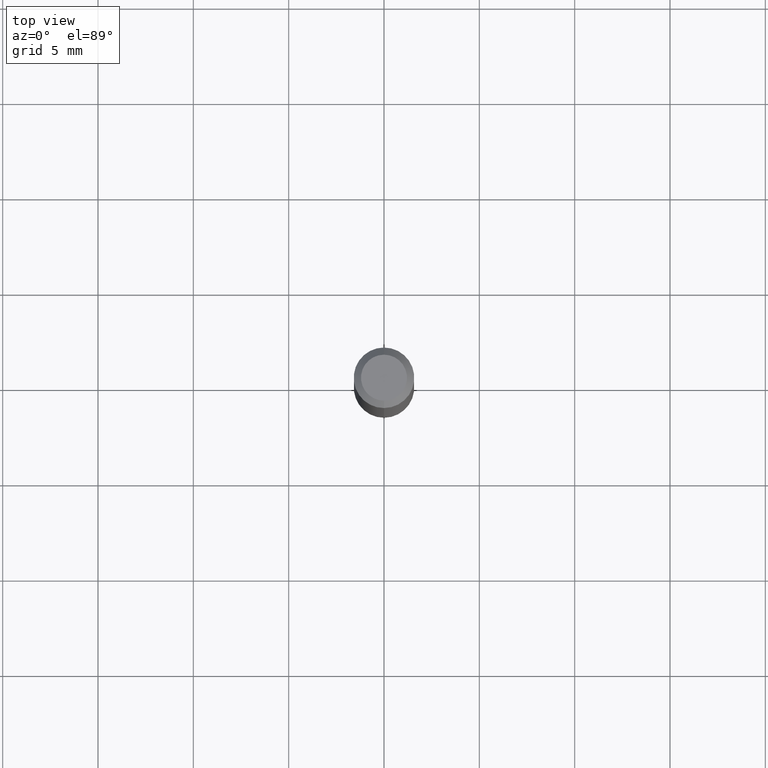
[diagram: clean part render]
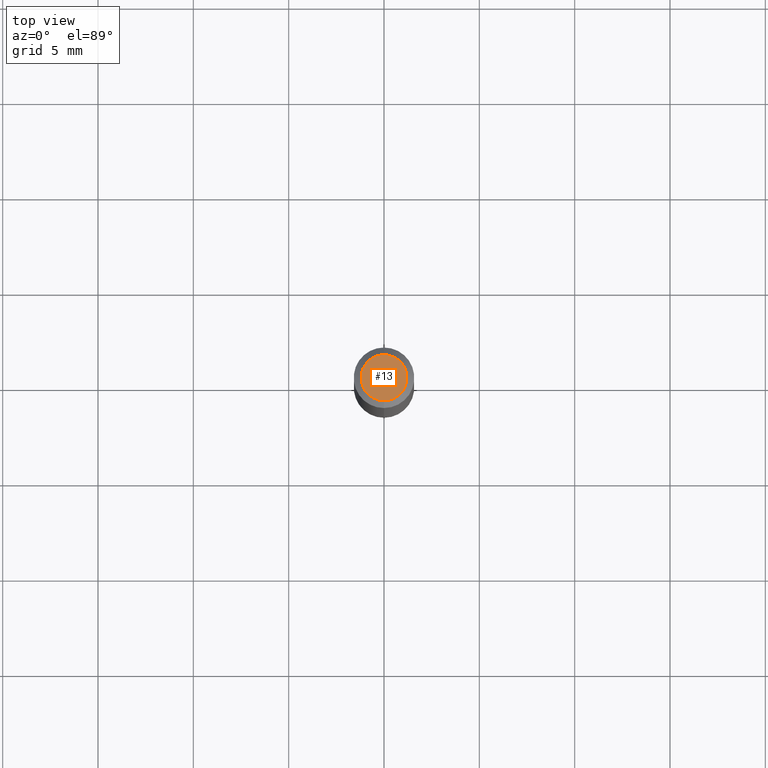
[diagram: same view with one face highlighted and labeled with its STEP entity id]
A machine part, top view. The second image highlights one B-rep face of the part: STEP entity #13.
In plain terms, the highlighted planar face has unit normal (0, -0, -1).
Its self-contained STEP definition (entity closure, byte-faithful):
#4 = VERTEX_POINT ( 'NONE', #192 ) ;
#13 = ADVANCED_FACE ( 'NONE', ( #287 ), #361, .F. ) ;
#18 = ORIENTED_EDGE ( 'NONE', *, *, #66, .T. ) ;
#23 = DIRECTION ( 'NONE',  ( -6.982962677686266711E-15, -1.000000000000000000, 3.494325949358259744E-15 ) ) ;
#66 = EDGE_CURVE ( 'NONE', #337, #4, #491, .T. ) ;
#69 = CIRCLE ( 'NONE', #446, 0.04749999999999999362 ) ;
#82 = DIRECTION ( 'NONE',  ( 2.443482425279177006E-29, -3.494325949358259350E-15, -1.000000000000000000 ) ) ;
#87 = DIRECTION ( 'NONE',  ( 6.982962677686265922E-15, 1.000000000000000000, -3.494325949358259350E-15 ) ) ;
#101 = DIRECTION ( 'NONE',  ( -2.443482425279177286E-29, 3.494325949358259350E-15, 1.000000000000000000 ) ) ;
#123 = CARTESIAN_POINT ( 'NONE',  ( 3.316907271900976096E-16, 0.04749999999999999362, -1.803698785587178532E-16 ) ) ;
#192 = CARTESIAN_POINT ( 'NONE',  ( -3.773273898774340269E-16, -0.04749999999999999362, 1.372016906661161524E-16 ) ) ;
#264 = AXIS2_PLACEMENT_3D ( 'NONE', #123, #82, #87 ) ;
#270 = CARTESIAN_POINT ( 'NONE',  ( 7.032047229781433720E-46, -1.005624794265939985E-31, -2.877879192840109893E-17 ) ) ;
#287 = FACE_OUTER_BOUND ( 'NONE', #457, .T. ) ;
#337 = VERTEX_POINT ( 'NONE', #349 ) ;
#338 = EDGE_CURVE ( 'NONE', #4, #337, #69, .T. ) ;
#349 = CARTESIAN_POINT ( 'NONE',  ( 3.840629472727447874E-16, 0.04749999999999999362, -1.947592745229183872E-16 ) ) ;
#361 = PLANE ( 'NONE',  #264 ) ;
#380 = DIRECTION ( 'NONE',  ( -2.443482425279177286E-29, 3.494325949358259350E-15, 1.000000000000000000 ) ) ;
#395 = DIRECTION ( 'NONE',  ( -6.982962677686266711E-15, -1.000000000000000000, 3.494325949358259744E-15 ) ) ;
#427 = CARTESIAN_POINT ( 'NONE',  ( 7.032047229781433720E-46, -1.005624794265939985E-31, -2.877879192840109893E-17 ) ) ;
#435 = AXIS2_PLACEMENT_3D ( 'NONE', #270, #380, #395 ) ;
#445 = ORIENTED_EDGE ( 'NONE', *, *, #338, .T. ) ;
#446 = AXIS2_PLACEMENT_3D ( 'NONE', #427, #101, #23 ) ;
#457 = EDGE_LOOP ( 'NONE', ( #18, #445 ) ) ;
#491 = CIRCLE ( 'NONE', #435, 0.04749999999999999362 ) ;